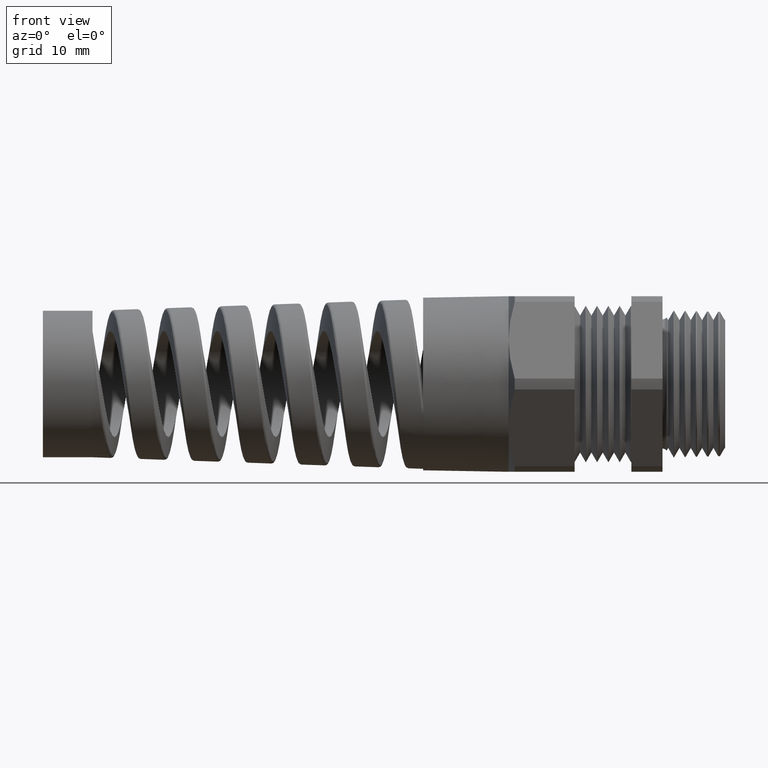
[diagram: clean part render]
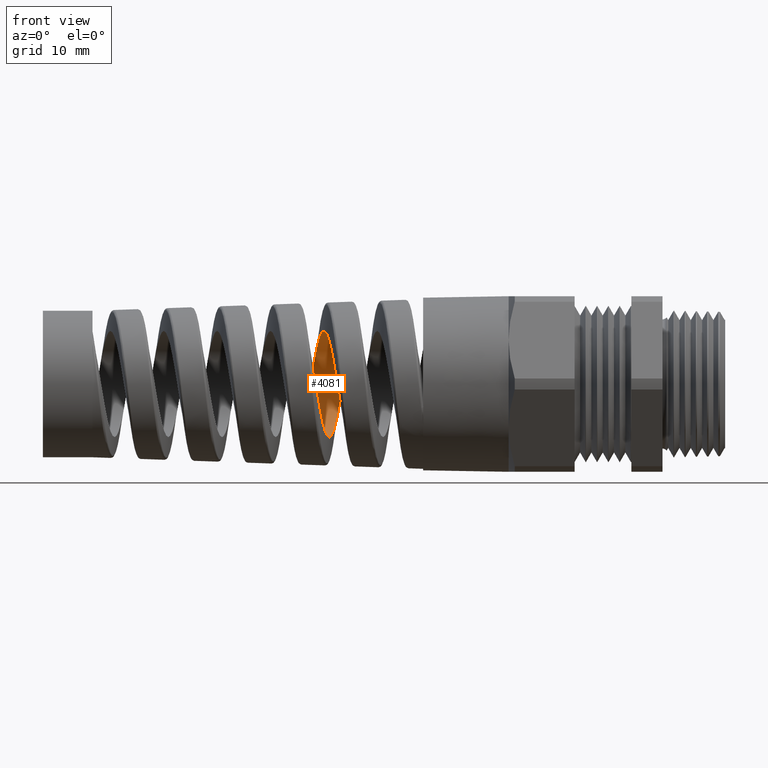
[diagram: same view with one face highlighted and labeled with its STEP entity id]
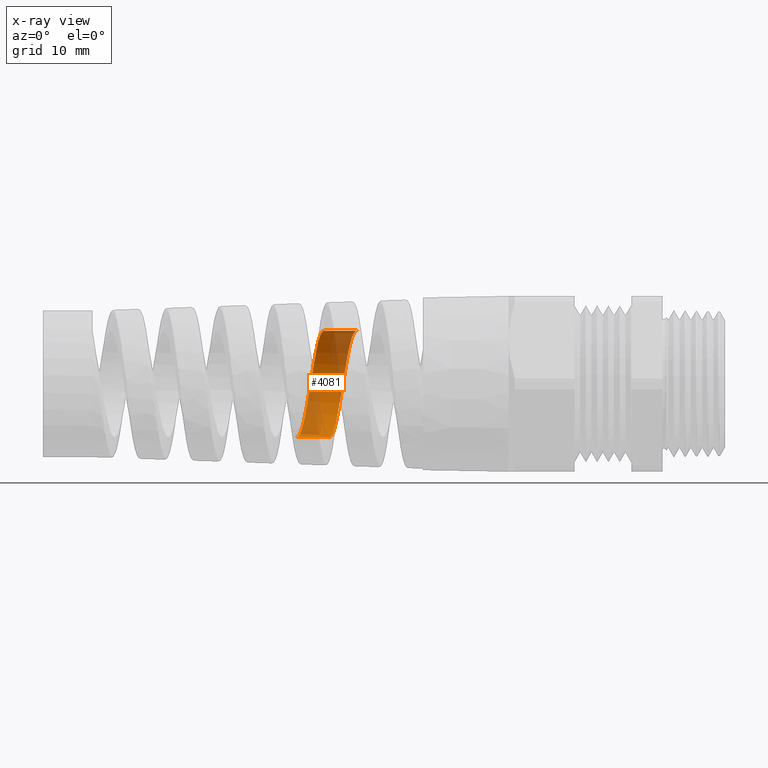
[diagram: x-ray of the same camera — body ghosted, the highlighted face saturated]
A machine part, front view. The second image highlights one B-rep face of the part: STEP entity #4081.
The next image is the same camera in x-ray: the body ghosted, the highlighted face saturated — about 43% of this face is hidden behind the body in this view.
In plain terms, the highlighted cylindrical surface (partial cylindrical patch) has radius 6.6796 mm, axis along (1, 0, 0).
Its self-contained STEP definition (entity closure, byte-faithful):
#3818 = VERTEX_POINT ( 'NONE', #5113 ) ;
#3826 = VERTEX_POINT ( 'NONE', #5087 ) ;
#3831 = EDGE_CURVE ( 'NONE', #3826, #3834, #5155, .T. ) ;
#3834 = VERTEX_POINT ( 'NONE', #5146 ) ;
#3847 = EDGE_CURVE ( 'NONE', #3818, #3952, #5305, .T. ) ;
#3952 = VERTEX_POINT ( 'NONE', #5617 ) ;
#4040 = EDGE_CURVE ( 'NONE', #3818, #3826, #5905, .T. ) ;
#4081 = ADVANCED_FACE ( 'NONE', ( #6146 ), #6189, .F. ) ;
#4083 = EDGE_LOOP ( 'NONE', ( #4084, #4237, #4116, #4118 ) ) ;
#4084 = ORIENTED_EDGE ( 'NONE', *, *, #3831, .F. ) ;
#4116 = ORIENTED_EDGE ( 'NONE', *, *, #3847, .T. ) ;
#4118 = ORIENTED_EDGE ( 'NONE', *, *, #4120, .F. ) ;
#4120 = EDGE_CURVE ( 'NONE', #3834, #3952, #6388, .T. ) ;
#4237 = ORIENTED_EDGE ( 'NONE', *, *, #4040, .F. ) ;
#5087 = CARTESIAN_POINT ( 'NONE',  ( -1.677876402758632100, 7.724940478959219100E-015, 0.2629748873515553300 ) ) ;
#5113 = CARTESIAN_POINT ( 'NONE',  ( -1.810060103837128200, 5.271612925274006800E-015, -0.2629748873515551100 ) ) ;
#5146 = CARTESIAN_POINT ( 'NONE',  ( -1.517579649267138500, -4.760543591356747700E-014, 0.2629748873515553300 ) ) ;
#5149 = DIRECTION ( 'NONE',  ( 1.000000000000000000, 0.0000000000000000000, 0.0000000000000000000 ) ) ;
#5151 = VECTOR ( 'NONE', #5149, 39.37007874015748100 ) ;
#5153 = CARTESIAN_POINT ( 'NONE',  ( 0.4924815508901369000, 3.220513540512179600E-017, 0.2629748873515552800 ) ) ;
#5155 = LINE ( 'NONE', #5153, #5151 ) ;
#5302 = DIRECTION ( 'NONE',  ( 1.000000000000000000, 0.0000000000000000000, 0.0000000000000000000 ) ) ;
#5303 = VECTOR ( 'NONE', #5302, 39.37007874015748100 ) ;
#5304 = CARTESIAN_POINT ( 'NONE',  ( 0.4924815508901369000, 0.0000000000000000000, -0.2629748873515552800 ) ) ;
#5305 = LINE ( 'NONE', #5304, #5303 ) ;
#5617 = CARTESIAN_POINT ( 'NONE',  ( -1.650601157163187800, 6.722032126847676700E-013, -0.2629748873515553900 ) ) ;
#5863 = CARTESIAN_POINT ( 'NONE',  ( -1.677876402758632100, 7.724940478959219100E-015, 0.2629748873515553300 ) ) ;
#5864 = CARTESIAN_POINT ( 'NONE',  ( -1.680617131996092300, 0.01714215038767128600, 0.2629748873515548900 ) ) ;
#5865 = CARTESIAN_POINT ( 'NONE',  ( -1.683346397551267700, 0.03422853835580423600, 0.2613145539898946700 ) ) ;
#5866 = CARTESIAN_POINT ( 'NONE',  ( -1.688894379351134200, 0.06826749688495364900, 0.2545514443761322500 ) ) ;
#5867 = CARTESIAN_POINT ( 'NONE',  ( -1.691639412374488900, 0.08475894677073006500, 0.2495300971782109000 ) ) ;
#5868 = CARTESIAN_POINT ( 'NONE',  ( -1.695756260774964800, 0.1085047791976031800, 0.2396995901922123500 ) ) ;
#5869 = CARTESIAN_POINT ( 'NONE',  ( -1.697130229472217700, 0.1162662927586164100, 0.2360344229422749500 ) ) ;
#5870 = CARTESIAN_POINT ( 'NONE',  ( -1.699892937948722400, 0.1314743449266596600, 0.2279135719338161700 ) ) ;
#5871 = CARTESIAN_POINT ( 'NONE',  ( -1.701288812046454000, 0.1389567736069688100, 0.2234309318748548000 ) ) ;
#5872 = CARTESIAN_POINT ( 'NONE',  ( -1.705434092753009400, 0.1604953533301086700, 0.2090342852874902100 ) ) ;
#5873 = CARTESIAN_POINT ( 'NONE',  ( -1.708160924104109400, 0.1737410041897806700, 0.1981531171144800500 ) ) ;
#5874 = CARTESIAN_POINT ( 'NONE',  ( -1.713648916310581900, 0.1980313139458702600, 0.1738798236021949200 ) ) ;
#5875 = CARTESIAN_POINT ( 'NONE',  ( -1.716435680878331000, 0.2091472871037226000, 0.1603385117701348300 ) ) ;
#5876 = CARTESIAN_POINT ( 'NONE',  ( -1.721934850467063500, 0.2282326255343339300, 0.1317607479533004200 ) ) ;
#5877 = CARTESIAN_POINT ( 'NONE',  ( -1.724667813635316600, 0.2363171505882673800, 0.1166511631958565700 ) ) ;
#5878 = CARTESIAN_POINT ( 'NONE',  ( -1.728813649482499900, 0.2462260873399188800, 0.09275171066197671100 ) ) ;
#5879 = CARTESIAN_POINT ( 'NONE',  ( -1.730209590419772500, 0.2491659185267725000, 0.08453779435901315200 ) ) ;
#5880 = CARTESIAN_POINT ( 'NONE',  ( -1.732971663396897900, 0.2541731339005471900, 0.06801699518173015500 ) ) ;
#5881 = CARTESIAN_POINT ( 'NONE',  ( -1.734343828821177400, 0.2562559968331980000, 0.05968320236123003700 ) ) ;
#5882 = CARTESIAN_POINT ( 'NONE',  ( -1.738453711064372300, 0.2612687641558094100, 0.03446942082595411100 ) ) ;
#5883 = CARTESIAN_POINT ( 'NONE',  ( -1.741184291146860900, 0.2629745884080554300, 0.01737895159494875400 ) ) ;
#5884 = CARTESIAN_POINT ( 'NONE',  ( -1.746739751047176900, 0.2629751862172231600, -0.01736990330838251300 ) ) ;
#5885 = CARTESIAN_POINT ( 'NONE',  ( -1.749476809811989300, 0.2612683122312815500, -0.03447180868363389200 ) ) ;
#5886 = CARTESIAN_POINT ( 'NONE',  ( -1.753594596206071900, 0.2562561223868877200, -0.05968251347702020800 ) ) ;
#5887 = CARTESIAN_POINT ( 'NONE',  ( -1.754969341673269000, 0.2541737949073184000, -0.06801409072266508000 ) ) ;
#5888 = CARTESIAN_POINT ( 'NONE',  ( -1.757734446681427800, 0.2491689666817052700, -0.08452846027930283100 ) ) ;
#5889 = CARTESIAN_POINT ( 'NONE',  ( -1.759130259990405300, 0.2462294743862693800, -0.09274302846824021600 ) ) ;
#5890 = CARTESIAN_POINT ( 'NONE',  ( -1.763271261339024500, 0.2363172543430233100, -0.1166519383082970400 ) ) ;
#5891 = CARTESIAN_POINT ( 'NONE',  ( -1.765997335658888300, 0.2282310619653662200, -0.1317630277162257500 ) ) ;
#5892 = CARTESIAN_POINT ( 'NONE',  ( -1.771488290875323300, 0.2091494311728348800, -0.1603353627833400700 ) ) ;
#5893 = CARTESIAN_POINT ( 'NONE',  ( -1.774275412319683600, 0.1980334411009048200, -0.1738776820073988600 ) ) ;
#5894 = CARTESIAN_POINT ( 'NONE',  ( -1.779772038529237300, 0.1737391211481441900, -0.1981550147667278400 ) ) ;
#5895 = CARTESIAN_POINT ( 'NONE',  ( -1.782505803862312900, 0.1604949426356453400, -0.2090340200404310300 ) ) ;
#5896 = CARTESIAN_POINT ( 'NONE',  ( -1.786655331292661600, 0.1389655014397251900, -0.2234253678060053600 ) ) ;
#5897 = CARTESIAN_POINT ( 'NONE',  ( -1.788050823245215000, 0.1314820645674594500, -0.2279092411472300200 ) ) ;
#5898 = CARTESIAN_POINT ( 'NONE',  ( -1.790810127539262100, 0.1162684708255988800, -0.2360334683791786600 ) ) ;
#5899 = CARTESIAN_POINT ( 'NONE',  ( -1.792181437462920600, 0.1085050538954595700, -0.2396994960054664200 ) ) ;
#5900 = CARTESIAN_POINT ( 'NONE',  ( -1.796290367770314100, 0.08475686167844251300, -0.2495309213108802000 ) ) ;
#5901 = CARTESIAN_POINT ( 'NONE',  ( -1.799028125968970000, 0.06828355771856917100, -0.2545477033683650700 ) ) ;
#5902 = CARTESIAN_POINT ( 'NONE',  ( -1.804579514655080700, 0.03422850136999497400, -0.2613151110035135100 ) ) ;
#5903 = CARTESIAN_POINT ( 'NONE',  ( -1.807314142142017100, 0.01713966790878394800, -0.2629748873515548300 ) ) ;
#5904 = CARTESIAN_POINT ( 'NONE',  ( -1.810060103837128200, 5.271612925274006800E-015, -0.2629748873515551100 ) ) ;
#5905 = B_SPLINE_CURVE_WITH_KNOTS ( 'NONE', 3,
 ( #5904, #5903, #5902, #5901, #5900, #5899, #5898, #5897, #5896, #5895, #5894, #5893, #5892, #5891, #5890, #5889, #5888, #5887, #5886, #5885, #5884, #5883, #5882, #5881, #5880, #5879, #5878, #5877, #5876, #5875, #5874, #5873, #5872, #5871, #5870, #5869, #5868, #5867, #5866, #5865, #5864, #5863 ),
 .UNSPECIFIED., .F., .F.,
 ( 4, 2, 2, 2, 2, 2, 2, 2, 2, 2, 2, 2, 2, 2, 2, 2, 2, 2, 2, 2, 4 ),
 ( 0.1615876343600991000, 0.1629038673148986100, 0.1642201002696981600, 0.1648782167470979100, 0.1655363332244976800, 0.1668525661792972000, 0.1681687991340967400, 0.1694850320888962600, 0.1701431485662960300, 0.1708012650436957800, 0.1721174979984953200, 0.1734337309532948400, 0.1740918474306946100, 0.1747499639080943900, 0.1760661968628939000, 0.1773824298176934500, 0.1786986627724929700, 0.1793567792498927400, 0.1800148957272924800, 0.1813311286820920300, 0.1826473616368915500 ),
 .UNSPECIFIED. ) ;
#5985 = CARTESIAN_POINT ( 'NONE',  ( -1.645034283750529800, 0.03451057041698039200, -0.2608434322397325000 ) ) ;
#5987 = CARTESIAN_POINT ( 'NONE',  ( -1.643652504979157500, 0.04300510551361964900, -0.2595760883851208100 ) ) ;
#5988 = CARTESIAN_POINT ( 'NONE',  ( -1.639510296948494000, 0.06821024626720563500, -0.2545520127944536100 ) ) ;
#6146 = FACE_OUTER_BOUND ( 'NONE', #4083, .T. ) ;
#6184 = DIRECTION ( 'NONE',  ( 0.0000000000000000000, 0.0000000000000000000, -1.000000000000000000 ) ) ;
#6185 = DIRECTION ( 'NONE',  ( 1.000000000000000000, 0.0000000000000000000, 0.0000000000000000000 ) ) ;
#6186 = CARTESIAN_POINT ( 'NONE',  ( 0.4924815508901369000, 0.0000000000000000000, 0.0000000000000000000 ) ) ;
#6187 = AXIS2_PLACEMENT_3D ( 'NONE', #6186, #6185, #6184 ) ;
#6189 = CYLINDRICAL_SURFACE ( 'NONE', #6187, 0.2629748873515552800 ) ;
#6322 = CARTESIAN_POINT ( 'NONE',  ( -1.636752575825784400, 0.08464499060757291200, -0.2495849456806257800 ) ) ;
#6323 = CARTESIAN_POINT ( 'NONE',  ( -1.631157370351902000, 0.1167329538982474400, -0.2362854989616304000 ) ) ;
#6324 = CARTESIAN_POINT ( 'NONE',  ( -1.628406802744940500, 0.1318808153897050300, -0.2281595492962462900 ) ) ;
#6325 = CARTESIAN_POINT ( 'NONE',  ( -1.624274625225491200, 0.1532475232966844000, -0.2138793409549749600 ) ) ;
#6326 = CARTESIAN_POINT ( 'NONE',  ( -1.622895852687429500, 0.1601455110681153600, -0.2087668756003250900 ) ) ;
#6327 = CARTESIAN_POINT ( 'NONE',  ( -1.620121303047735700, 0.1734817861086417900, -0.1978238179586698800 ) ) ;
#6328 = CARTESIAN_POINT ( 'NONE',  ( -1.618719538012087600, 0.1799440352708818700, -0.1919644585734267000 ) ) ;
#6329 = CARTESIAN_POINT ( 'NONE',  ( -1.614553212100545300, 0.1982349362732805400, -0.1736559030032316700 ) ) ;
#6331 = CARTESIAN_POINT ( 'NONE',  ( -1.611803990687817900, 0.2090962703419645400, -0.1604040051905063200 ) ) ;
#6333 = CARTESIAN_POINT ( 'NONE',  ( -1.606265319285895800, 0.2281809478222317500, -0.1318489673946059100 ) ) ;
#6335 = CARTESIAN_POINT ( 'NONE',  ( -1.603457137591270100, 0.2364353006178797300, -0.1164000523010564200 ) ) ;
#6336 = CARTESIAN_POINT ( 'NONE',  ( -1.597932763956587900, 0.2495637847303476300, -0.08466723631382215600 ) ) ;
#6338 = CARTESIAN_POINT ( 'NONE',  ( -1.595191782817764000, 0.2545443203586086900, -0.06827041127387104000 ) ) ;
#6340 = CARTESIAN_POINT ( 'NONE',  ( -1.591027999351621400, 0.2595987998040206700, -0.04288031825985859400 ) ) ;
#6342 = CARTESIAN_POINT ( 'NONE',  ( -1.589626228798718400, 0.2608772884916523100, -0.03425179070185666700 ) ) ;
#6343 = CARTESIAN_POINT ( 'NONE',  ( -1.586849731063354300, 0.2625607153846156700, -0.01708846259203494400 ) ) ;
#6345 = CARTESIAN_POINT ( 'NONE',  ( -1.585468505182228600, 0.2629765458068501500, -0.008514441583883019400 ) ) ;
#6347 = CARTESIAN_POINT ( 'NONE',  ( -1.581326635112779000, 0.2629715555645010800, 0.01718209158536536700 ) ) ;
#6349 = CARTESIAN_POINT ( 'NONE',  ( -1.578562877534930700, 0.2613048270142510100, 0.03430674915007716300 ) ) ;
#6350 = CARTESIAN_POINT ( 'NONE',  ( -1.572971315738713100, 0.2545273995016158500, 0.06835911468954775100 ) ) ;
#6352 = CARTESIAN_POINT ( 'NONE',  ( -1.570224267099063600, 0.2495227457729400600, 0.08478112832509368500 ) ) ;
#6354 = CARTESIAN_POINT ( 'NONE',  ( -1.566091350151493900, 0.2396883527349430200, 0.1085297064905168400 ) ) ;
#6356 = CARTESIAN_POINT ( 'NONE',  ( -1.564711804522659300, 0.2360195446518633900, 0.1162974662281107500 ) ) ;
#6357 = CARTESIAN_POINT ( 'NONE',  ( -1.561934600783296400, 0.2278835697605669500, 0.1315272015285522100 ) ) ;
#6359 = CARTESIAN_POINT ( 'NONE',  ( -1.560532996277770300, 0.2233989845265392000, 0.1390071084936847200 ) ) ;
#6361 = CARTESIAN_POINT ( 'NONE',  ( -1.556369770857053600, 0.2090262252913694900, 0.1605023146400312000 ) ) ;
#6363 = CARTESIAN_POINT ( 'NONE',  ( -1.553620574854617500, 0.1981535632428552400, 0.1737417221038019000 ) ) ;
#6364 = CARTESIAN_POINT ( 'NONE',  ( -1.548078952569689600, 0.1738615624955826000, 0.1980484226446389600 ) ) ;
#6366 = CARTESIAN_POINT ( 'NONE',  ( -1.545271848850751300, 0.1603227218541772900, 0.2091577544051364300 ) ) ;
#6368 = CARTESIAN_POINT ( 'NONE',  ( -1.539750513656271200, 0.1317781869906209700, 0.2282210568812531000 ) ) ;
#6370 = CARTESIAN_POINT ( 'NONE',  ( -1.537008995886656200, 0.1166674008176825100, 0.2363110797463849100 ) ) ;
#6371 = CARTESIAN_POINT ( 'NONE',  ( -1.532841104867871800, 0.09273070029479121800, 0.2462344674535310300 ) ) ;
#6373 = CARTESIAN_POINT ( 'NONE',  ( -1.531439838098446600, 0.08452135755779069400, 0.2491709500292562100 ) ) ;
#6375 = CARTESIAN_POINT ( 'NONE',  ( -1.528665330162584100, 0.06803065049550649500, 0.2541689454183027600 ) ) ;
#6377 = CARTESIAN_POINT ( 'NONE',  ( -1.527284587100354400, 0.05970684351733886200, 0.2562503354176660100 ) ) ;
#6378 = CARTESIAN_POINT ( 'NONE',  ( -1.523142862320367600, 0.03450717846719265200, 0.2612631752838984200 ) ) ;
#6380 = CARTESIAN_POINT ( 'NONE',  ( -1.520371449878589200, 0.01733985873359540600, 0.2629748873515583800 ) ) ;
#6382 = CARTESIAN_POINT ( 'NONE',  ( -1.517579649267138500, -4.760543591356747700E-014, 0.2629748873515553300 ) ) ;
#6388 = B_SPLINE_CURVE_WITH_KNOTS ( 'NONE', 3,
 ( #6382, #6380, #6378, #6377, #6375, #6373, #6371, #6370, #6368, #6366, #6364, #6363, #6361, #6359, #6357, #6356, #6354, #6352, #6350, #6349, #6347, #6345, #6343, #6342, #6340, #6338, #6336, #6335, #6333, #6331, #6329, #6328, #6327, #6326, #6325, #6324, #6323, #6322, #5988, #5987, #5985, #11507, #11540, #11487 ),
 .UNSPECIFIED., .F., .F.,
 ( 4, 2, 2, 2, 2, 2, 2, 2, 2, 2, 2, 2, 2, 2, 2, 2, 2, 2, 2, 2, 2, 4 ),
 ( 0.08275821815860376400, 0.08408017519136806700, 0.08474115370775021900, 0.08540213222413237100, 0.08672408925689666100, 0.08804604628966096500, 0.08936800332242526800, 0.09002898183880742000, 0.09068996035518955800, 0.09201191738795386200, 0.09333387442071816600, 0.09399485293710031800, 0.09465583145348245600, 0.09597778848624676000, 0.09729974551901104900, 0.09862170255177535300, 0.09928268106815749100, 0.09994365958453964300, 0.1012656166173039300, 0.1025875736500682400, 0.1032485521664503700, 0.1039095306828325300 ),
 .UNSPECIFIED. ) ;
#11487 = CARTESIAN_POINT ( 'NONE',  ( -1.650601157163187800, 6.722032126847676700E-013, -0.2629748873515553900 ) ) ;
#11507 = CARTESIAN_POINT ( 'NONE',  ( -1.647812926290207500, 0.01733378353247280000, -0.2625448829468185500 ) ) ;
#11540 = CARTESIAN_POINT ( 'NONE',  ( -1.649214514343353600, 0.008621963162200544500, -0.2629748873515334000 ) ) ;